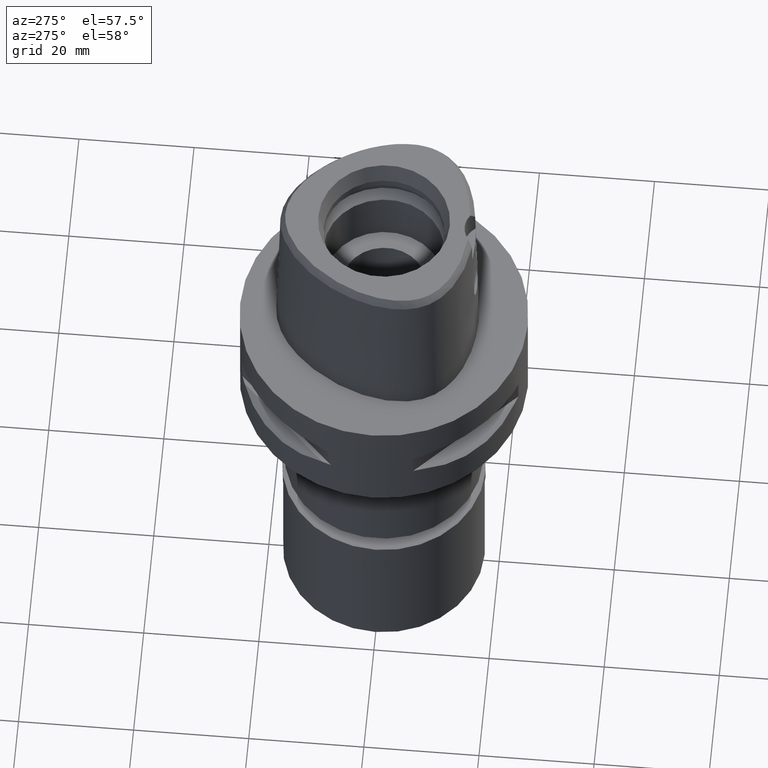
[diagram: clean part render]
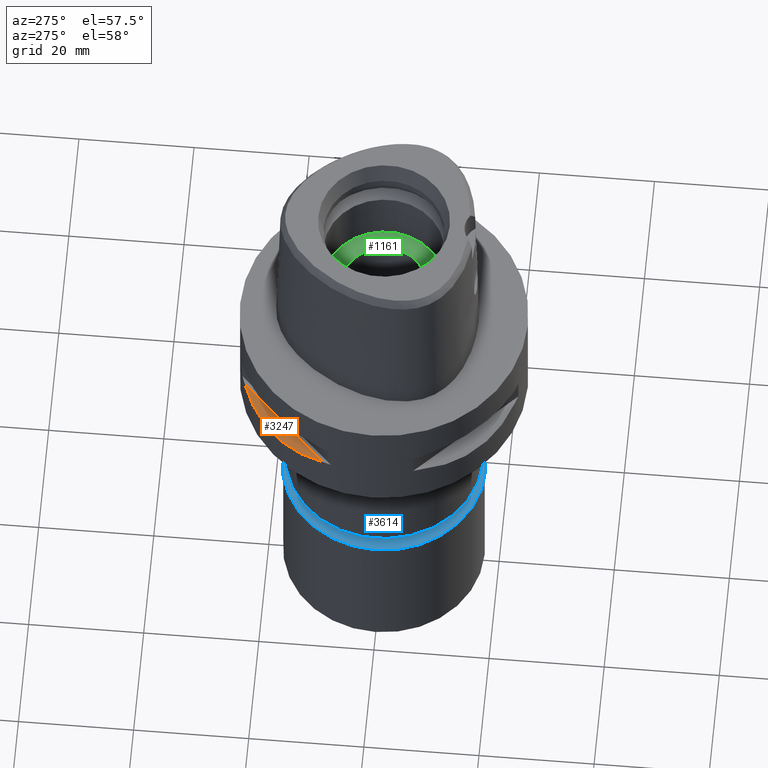
[diagram: same view with three faces highlighted in distinct colors, each labeled with its STEP entity id]
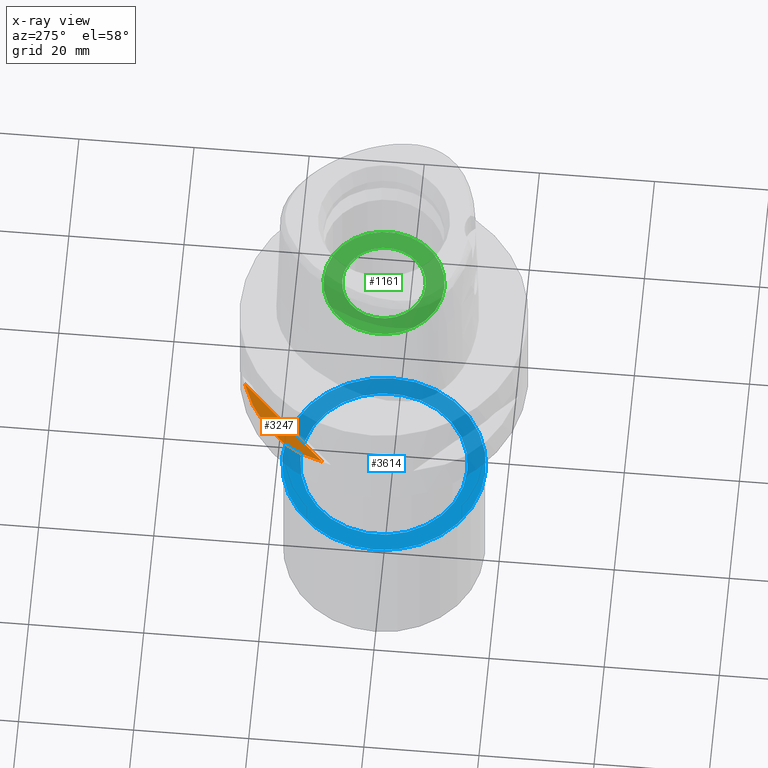
[diagram: x-ray of the same camera — body ghosted, the three highlighted faces saturated]
A machine part, auxiliary view with three faces highlighted in distinct colors.
The next image is the same camera in x-ray (body ghosted, the three faces saturated) — at least one of them is partly hidden behind the body in this view.
Their STEP definitions:

[orange] entity #3247 — the highlighted planar face has unit normal (0.3536, -0.3536, -0.866).
#463 = CARTESIAN_POINT ( 'NONE',  ( -9.515641234306031038, 23.13678124604833286, -12.27403800212850093 ) ) ;
#511 = CARTESIAN_POINT ( 'NONE',  ( -23.45715880140000209, 8.646484890751999330, -12.05000000000000071 ) ) ;
#536 = CARTESIAN_POINT ( 'NONE',  ( -18.30096971346383938, 17.05439749819285566, -13.37751056790111903 ) ) ;
#761 = VERTEX_POINT ( 'NONE', #785 ) ;
#785 = CARTESIAN_POINT ( 'NONE',  ( -8.646484890756999775, 23.45715880140000209, -12.05000000000000071 ) ) ;
#798 = VERTEX_POINT ( 'NONE', #3874 ) ;
#807 = PLANE ( 'NONE',  #1041 ) ;
#835 = CARTESIAN_POINT ( 'NONE',  ( -20.92801700160071476, 13.67544437571354266, -13.07054629644097687 ) ) ;
#889 = CARTESIAN_POINT ( 'NONE',  ( -12.20403021318853476, 21.82791133048002763, -12.83722430138890225 ) ) ;
#914 = CARTESIAN_POINT ( 'NONE',  ( -8.646484890756999775, 23.45715880140000209, -12.05000000000000071 ) ) ;
#943 = EDGE_CURVE ( 'NONE', #761, #798, #1285, .T. ) ;
#1041 = AXIS2_PLACEMENT_3D ( 'NONE', #2326, #1163, #2678 ) ;
#1163 = DIRECTION ( 'NONE',  ( 0.3535533905933054277, -0.3535533905933049836, -0.8660254037844130615 ) ) ;
#1180 = EDGE_LOOP ( 'NONE', ( #3196, #2671 ) ) ;
#1213 = CARTESIAN_POINT ( 'NONE',  ( -20.11654071400031540, 14.85488513041178749, -13.22076716108514027 ) ) ;
#1282 = CARTESIAN_POINT ( 'NONE',  ( -16.43106916206558665, 18.92421359260760383, -13.37747608848198411 ) ) ;
#1285 = LINE ( 'NONE', #3643, #4230 ) ;
#1592 = CARTESIAN_POINT ( 'NONE',  ( -12.89853354822446718, 21.41803043592210543, -12.95342092614171570 ) ) ;
#1977 = CARTESIAN_POINT ( 'NONE',  ( -13.55971422200804888, 21.00321793043550755, -13.05400030967368785 ) ) ;
#2001 = CARTESIAN_POINT ( 'NONE',  ( -20.88268233905774807, 13.74471461762043312, -13.08031795579756640 ) ) ;
#2046 = CARTESIAN_POINT ( 'NONE',  ( -19.18226349636000805, 16.07509500021993887, -13.33749867752047358 ) ) ;
#2326 = CARTESIAN_POINT ( 'NONE',  ( -26.65842356386999867, 5.445220128276999638, -12.05000000000000071 ) ) ;
#2671 = ORIENTED_EDGE ( 'NONE', *, *, #3363, .T. ) ;
#2678 = DIRECTION ( 'NONE',  ( 0.0000000000000000000, -0.9258200997725358761, 0.3779644730092654448 ) ) ;
#2729 = CARTESIAN_POINT ( 'NONE',  ( -13.53433973752455621, 21.01958685664031989, -13.05032380590174235 ) ) ;
#2778 = CARTESIAN_POINT ( 'NONE',  ( -10.78455809746692928, 22.58788056561475344, -12.56798337783328634 ) ) ;
#2800 = CARTESIAN_POINT ( 'NONE',  ( -20.95817024473767987, 13.62920640916783555, -13.06397973560677883 ) ) ;
#3187 = CARTESIAN_POINT ( 'NONE',  ( -15.06560254766712248, 20.02826730454206228, -13.27075471794584693 ) ) ;
#3196 = ORIENTED_EDGE ( 'NONE', *, *, #943, .F. ) ;
#3247 = ADVANCED_FACE ( 'NONE', ( #4561 ), #807, .F. ) ;
#3363 = EDGE_CURVE ( 'NONE', #761, #798, #4301, .T. ) ;
#3544 = CARTESIAN_POINT ( 'NONE',  ( -22.81626994450270374, 10.38516041961251268, -12.49816953212508608 ) ) ;
#3565 = CARTESIAN_POINT ( 'NONE',  ( -20.97251445226615019, 13.60713573002994181, -13.06082541678091324 ) ) ;
#3643 = CARTESIAN_POINT ( 'NONE',  ( -8.646484890753999508, 23.45715880140000209, -12.05000000000000071 ) ) ;
#3869 = CARTESIAN_POINT ( 'NONE',  ( -13.41274673326554101, 21.09754014382029297, -13.03250796600789663 ) ) ;
#3874 = CARTESIAN_POINT ( 'NONE',  ( -23.45715880140000209, 8.646484890751999330, -12.05000000000000071 ) ) ;
#3895 = CARTESIAN_POINT ( 'NONE',  ( -20.56020460721917331, 14.22535762329778386, -13.14488865845300047 ) ) ;
#3936 = CARTESIAN_POINT ( 'NONE',  ( -13.48572973711170953, 21.05082155772122832, -13.04323036965318039 ) ) ;
#4230 = VECTOR ( 'NONE', #4324, 1000.000000000000114 ) ;
#4301 = B_SPLINE_CURVE_WITH_KNOTS ( 'NONE', 3,
 ( #914, #463, #2778, #889, #1592, #4606, #3869, #3936, #2729, #1977, #3187, #1282, #536, #2046, #1213, #3895, #4633, #2001, #835, #2800, #3565, #4319, #3544, #511 ),
 .UNSPECIFIED., .F., .F.,
 ( 4, 1, 1, 1, 1, 1, 2, 2, 2, 1, 1, 1, 1, 1, 2, 2, 4 ),
 ( 0.0000000000000000000, 0.1250000000000042744, 0.1875000000000064115, 0.2187500000000075218, 0.2343750000000079659, 0.2421875000000081601, 0.2460937500000082989, 0.2500000000000084377, 0.5000000000000065503, 0.6250000000000055511, 0.6875000000000051070, 0.7187500000000047740, 0.7343750000000045519, 0.7421875000000042188, 0.7460937500000041078, 0.7500000000000039968, 1.000000000000000000 ),
 .UNSPECIFIED. ) ;
#4319 = CARTESIAN_POINT ( 'NONE',  ( -21.99328990738197120, 12.03062603426555199, -12.83394786308387481 ) ) ;
#4324 = DIRECTION ( 'NONE',  ( -0.7071067811865474617, -0.7071067811865474617, 0.0000000000000000000 ) ) ;
#4561 = FACE_OUTER_BOUND ( 'NONE', #1180, .T. ) ;
#4606 = CARTESIAN_POINT ( 'NONE',  ( -13.24197703503622137, 21.20561591939551249, -13.00691327926188201 ) ) ;
#4633 = CARTESIAN_POINT ( 'NONE',  ( -20.77616787492827655, 13.90573822668830140, -13.10257122103331362 ) ) ;

[blue] entity #3614 — the highlighted planar face has unit normal (0, 0, -1).
#77 = CARTESIAN_POINT ( 'NONE',  ( 0.0000000000000000000, 0.0000000000000000000, 0.0000000000000000000 ) ) ;
#273 = CIRCLE ( 'NONE', #3444, 14.50000000000000000 ) ;
#289 = DIRECTION ( 'NONE',  ( 0.0000000000000000000, 0.0000000000000000000, -1.000000000000000000 ) ) ;
#538 = CARTESIAN_POINT ( 'NONE',  ( 0.0000000000000000000, 14.50000000000000000, 0.0000000000000000000 ) ) ;
#594 = CARTESIAN_POINT ( 'NONE',  ( 0.0000000000000000000, -14.50000000000000000, 0.0000000000000000000 ) ) ;
#600 = FACE_OUTER_BOUND ( 'NONE', #2443, .T. ) ;
#710 = EDGE_LOOP ( 'NONE', ( #2222, #4578 ) ) ;
#926 = DIRECTION ( 'NONE',  ( 0.0000000000000000000, 1.000000000000000000, 0.0000000000000000000 ) ) ;
#1010 = CARTESIAN_POINT ( 'NONE',  ( 0.0000000000000000000, 0.0000000000000000000, 0.0000000000000000000 ) ) ;
#1061 = VERTEX_POINT ( 'NONE', #4796 ) ;
#1276 = CIRCLE ( 'NONE', #4055, 14.50000000000000000 ) ;
#1421 = CARTESIAN_POINT ( 'NONE',  ( 0.0000000000000000000, -17.64999999999999858, 0.0000000000000000000 ) ) ;
#1495 = EDGE_CURVE ( 'NONE', #1061, #2605, #1767, .T. ) ;
#1767 = CIRCLE ( 'NONE', #4540, 17.64999999999999858 ) ;
#1899 = EDGE_CURVE ( 'NONE', #4899, #2177, #273, .T. ) ;
#2089 = AXIS2_PLACEMENT_3D ( 'NONE', #2820, #3208, #4736 ) ;
#2112 = FACE_BOUND ( 'NONE', #710, .T. ) ;
#2177 = VERTEX_POINT ( 'NONE', #538 ) ;
#2222 = ORIENTED_EDGE ( 'NONE', *, *, #2920, .F. ) ;
#2362 = DIRECTION ( 'NONE',  ( 0.0000000000000000000, 1.000000000000000000, 0.0000000000000000000 ) ) ;
#2443 = EDGE_LOOP ( 'NONE', ( #3821, #4153 ) ) ;
#2552 = EDGE_CURVE ( 'NONE', #2605, #1061, #4091, .T. ) ;
#2605 = VERTEX_POINT ( 'NONE', #1421 ) ;
#2820 = CARTESIAN_POINT ( 'NONE',  ( 0.0000000000000000000, 0.0000000000000000000, 0.0000000000000000000 ) ) ;
#2920 = EDGE_CURVE ( 'NONE', #2177, #4899, #1276, .T. ) ;
#3116 = DIRECTION ( 'NONE',  ( 0.0000000000000000000, 0.0000000000000000000, 1.000000000000000000 ) ) ;
#3182 = CARTESIAN_POINT ( 'NONE',  ( 0.0000000000000000000, 0.0000000000000000000, 0.0000000000000000000 ) ) ;
#3208 = DIRECTION ( 'NONE',  ( 0.0000000000000000000, 0.0000000000000000000, -1.000000000000000000 ) ) ;
#3444 = AXIS2_PLACEMENT_3D ( 'NONE', #1010, #4041, #3617 ) ;
#3614 = ADVANCED_FACE ( 'NONE', ( #600, #2112 ), #3637, .F. ) ;
#3617 = DIRECTION ( 'NONE',  ( 0.0000000000000000000, -1.000000000000000000, 0.0000000000000000000 ) ) ;
#3637 = PLANE ( 'NONE',  #3961 ) ;
#3821 = ORIENTED_EDGE ( 'NONE', *, *, #1495, .F. ) ;
#3961 = AXIS2_PLACEMENT_3D ( 'NONE', #4791, #289, #4718 ) ;
#4041 = DIRECTION ( 'NONE',  ( 0.0000000000000000000, 0.0000000000000000000, 1.000000000000000000 ) ) ;
#4055 = AXIS2_PLACEMENT_3D ( 'NONE', #77, #3116, #2362 ) ;
#4091 = CIRCLE ( 'NONE', #2089, 17.64999999999999858 ) ;
#4153 = ORIENTED_EDGE ( 'NONE', *, *, #2552, .F. ) ;
#4540 = AXIS2_PLACEMENT_3D ( 'NONE', #3182, #4690, #926 ) ;
#4578 = ORIENTED_EDGE ( 'NONE', *, *, #1899, .F. ) ;
#4690 = DIRECTION ( 'NONE',  ( 0.0000000000000000000, 0.0000000000000000000, -1.000000000000000000 ) ) ;
#4718 = DIRECTION ( 'NONE',  ( 0.0000000000000000000, -1.000000000000000000, 0.0000000000000000000 ) ) ;
#4736 = DIRECTION ( 'NONE',  ( 0.0000000000000000000, -1.000000000000000000, 0.0000000000000000000 ) ) ;
#4791 = CARTESIAN_POINT ( 'NONE',  ( 0.0000000000000000000, 0.0000000000000000000, 0.0000000000000000000 ) ) ;
#4796 = CARTESIAN_POINT ( 'NONE',  ( 0.0000000000000000000, 17.64999999999999858, 0.0000000000000000000 ) ) ;
#4899 = VERTEX_POINT ( 'NONE', #594 ) ;

[green] entity #1161 — the highlighted planar face has unit normal (0, 0, -1).
#285 = PLANE ( 'NONE',  #1219 ) ;
#373 = VERTEX_POINT ( 'NONE', #1784 ) ;
#427 = DIRECTION ( 'NONE',  ( 0.0000000000000000000, 0.0000000000000000000, 1.000000000000000000 ) ) ;
#453 = CARTESIAN_POINT ( 'NONE',  ( 0.0000000000000000000, 1.610410540878999754E-14, 10.00000000000000000 ) ) ;
#458 = DIRECTION ( 'NONE',  ( 0.0000000000000000000, 0.0000000000000000000, -1.000000000000000000 ) ) ;
#791 = CIRCLE ( 'NONE', #1821, 7.250000000000000000 ) ;
#843 = ORIENTED_EDGE ( 'NONE', *, *, #3283, .F. ) ;
#853 = CARTESIAN_POINT ( 'NONE',  ( 0.0000000000000000000, 1.610410540878999754E-14, 10.00000000000000000 ) ) ;
#1161 = ADVANCED_FACE ( 'NONE', ( #3025, #4865 ), #285, .F. ) ;
#1219 = AXIS2_PLACEMENT_3D ( 'NONE', #1801, #1456, #3392 ) ;
#1242 = EDGE_CURVE ( 'NONE', #3598, #1616, #1925, .T. ) ;
#1424 = AXIS2_PLACEMENT_3D ( 'NONE', #3747, #4874, #4533 ) ;
#1456 = DIRECTION ( 'NONE',  ( 0.0000000000000000000, 0.0000000000000000000, -1.000000000000000000 ) ) ;
#1511 = AXIS2_PLACEMENT_3D ( 'NONE', #2708, #427, #3504 ) ;
#1616 = VERTEX_POINT ( 'NONE', #2238 ) ;
#1784 = CARTESIAN_POINT ( 'NONE',  ( 0.0000000000000000000, 7.250000000000000000, 10.00000000000000000 ) ) ;
#1801 = CARTESIAN_POINT ( 'NONE',  ( 0.0000000000000000000, 1.347111479061999855E-14, 10.00000000000000000 ) ) ;
#1821 = AXIS2_PLACEMENT_3D ( 'NONE', #453, #1912, #2709 ) ;
#1912 = DIRECTION ( 'NONE',  ( 0.0000000000000000000, 0.0000000000000000000, 1.000000000000000000 ) ) ;
#1925 = CIRCLE ( 'NONE', #4158, 10.50000000000000000 ) ;
#1959 = ORIENTED_EDGE ( 'NONE', *, *, #2760, .F. ) ;
#2010 = VERTEX_POINT ( 'NONE', #3733 ) ;
#2238 = CARTESIAN_POINT ( 'NONE',  ( 0.0000000000000000000, -10.50000000000000000, 10.00000000000000000 ) ) ;
#2460 = CIRCLE ( 'NONE', #1424, 10.50000000000000000 ) ;
#2708 = CARTESIAN_POINT ( 'NONE',  ( 0.0000000000000000000, 1.610410540878999754E-14, 10.00000000000000000 ) ) ;
#2709 = DIRECTION ( 'NONE',  ( 0.0000000000000000000, -1.000000000000000000, 0.0000000000000000000 ) ) ;
#2760 = EDGE_CURVE ( 'NONE', #2010, #373, #791, .T. ) ;
#2770 = DIRECTION ( 'NONE',  ( 0.0000000000000000000, 1.000000000000000000, 0.0000000000000000000 ) ) ;
#2988 = EDGE_LOOP ( 'NONE', ( #843, #3298 ) ) ;
#3025 = FACE_OUTER_BOUND ( 'NONE', #2988, .T. ) ;
#3283 = EDGE_CURVE ( 'NONE', #1616, #3598, #2460, .T. ) ;
#3298 = ORIENTED_EDGE ( 'NONE', *, *, #1242, .F. ) ;
#3392 = DIRECTION ( 'NONE',  ( 0.0000000000000000000, -1.000000000000000000, 0.0000000000000000000 ) ) ;
#3504 = DIRECTION ( 'NONE',  ( 0.0000000000000000000, 1.000000000000000000, 0.0000000000000000000 ) ) ;
#3598 = VERTEX_POINT ( 'NONE', #4381 ) ;
#3645 = CIRCLE ( 'NONE', #1511, 7.250000000000000000 ) ;
#3733 = CARTESIAN_POINT ( 'NONE',  ( 0.0000000000000000000, -7.250000000000000000, 10.00000000000000000 ) ) ;
#3747 = CARTESIAN_POINT ( 'NONE',  ( 0.0000000000000000000, 1.610410540878999754E-14, 10.00000000000000000 ) ) ;
#3766 = EDGE_LOOP ( 'NONE', ( #1959, #4194 ) ) ;
#3948 = EDGE_CURVE ( 'NONE', #373, #2010, #3645, .T. ) ;
#4158 = AXIS2_PLACEMENT_3D ( 'NONE', #853, #458, #2770 ) ;
#4194 = ORIENTED_EDGE ( 'NONE', *, *, #3948, .F. ) ;
#4381 = CARTESIAN_POINT ( 'NONE',  ( 0.0000000000000000000, 10.50000000000000000, 10.00000000000000000 ) ) ;
#4533 = DIRECTION ( 'NONE',  ( 0.0000000000000000000, -1.000000000000000000, 0.0000000000000000000 ) ) ;
#4865 = FACE_BOUND ( 'NONE', #3766, .T. ) ;
#4874 = DIRECTION ( 'NONE',  ( 0.0000000000000000000, 0.0000000000000000000, -1.000000000000000000 ) ) ;